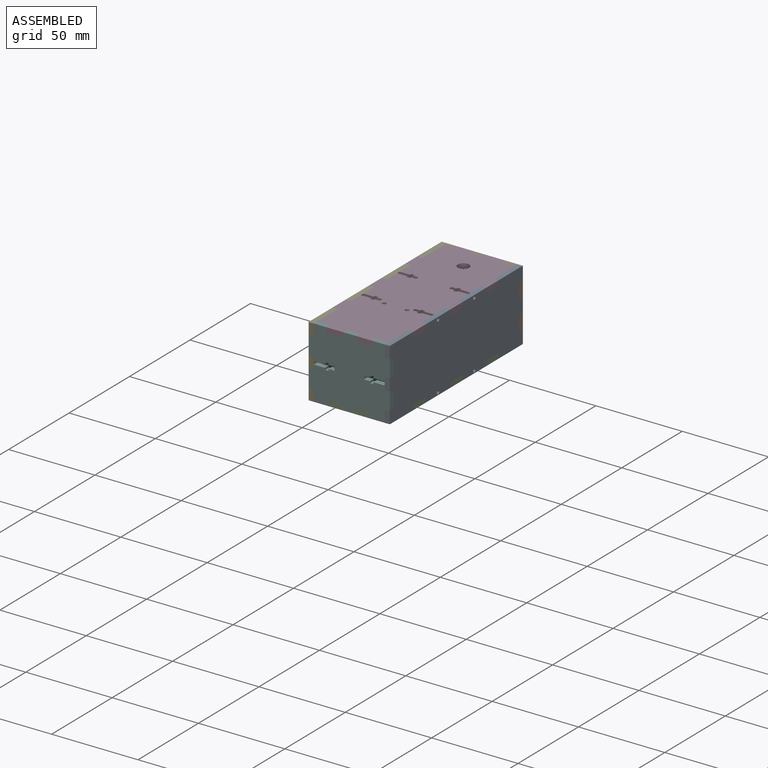
[diagram: assembled view]
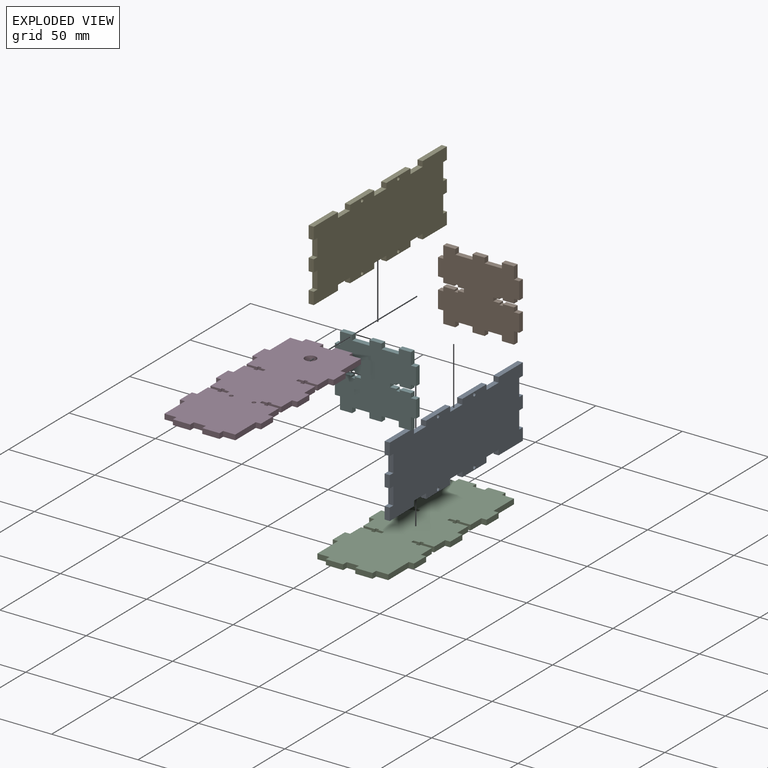
[diagram: exploded view]
GUIDED TOUR — MATED ASSEMBLY (Onshape document 57d8817723af1910d3bd62b0, AutoMate assembly 57d8817723af1910d3bd62b0_c3885aeb48be8cde890f6c77_c3d8289afe01d3ef316c972d_default)

This assembly has 6 components, labeled P0..P5 below (a component is one placed occurrence of a part; the same part can appear more than once), held together by 5 mates. A mate is a constraint between two components; its type names the relative motion it leaves free:
  FASTENED — locks the two components together rigidly (no relative motion).
Axis/direction vectors are unit vectors and 'through' points are millimeter coordinates, both in the assembly's world frame.

MATES
  1. FASTENED "Fastened 1": P1 <-> P4, direction (0.000, 0.000, 1.000) through (-58.52, 35.32, 27.29) mm
  2. FASTENED "Fastened 5": P3 <-> P0, direction (0.000, 1.000, 0.000) through (-14.52, 16.82, 32.79) mm
  3. FASTENED "Fastened 4": P2 <-> P1, direction (1.000, 0.000, 0.000) through (-23.02, 35.32, -5.21) mm
  4. FASTENED "Fastened 3": P5 <-> P4, direction (0.000, 0.000, 1.000) through (-58.52, -71.68, 27.29) mm
  5. FASTENED "Fastened 2": P1 <-> P0, direction (0.000, 0.000, 1.000) through (-14.52, 35.32, 27.29) mm

ASSEMBLY ORDER
  1. P1 — the base component [order verified]
  2. P4 [order verified]
  3. P5 [order verified]
  4. P0 [order verified]
  5. P3 [order verified]
  6. P2 [order verified]
Order-tag legend:
  [order verified] — this step's position reverses a verified removal order: the component was checked to insert without passing through the ones already placed.

Of the 6 components, 6 carry the full construction recipe — the FeatureScript program that regenerates the part's solid from scratch; the rest are supplied as boundary geometry only.
Each toured component is shown spotlighted twice — in the assembled view, then in the exploded view, where a leader line traces a displaced component back to its assembled socket (saturated green if recipe-attached, orange if geometry-only; every other component desaturated gray) — followed by its recipe or geometry summary and the mates that hold it.
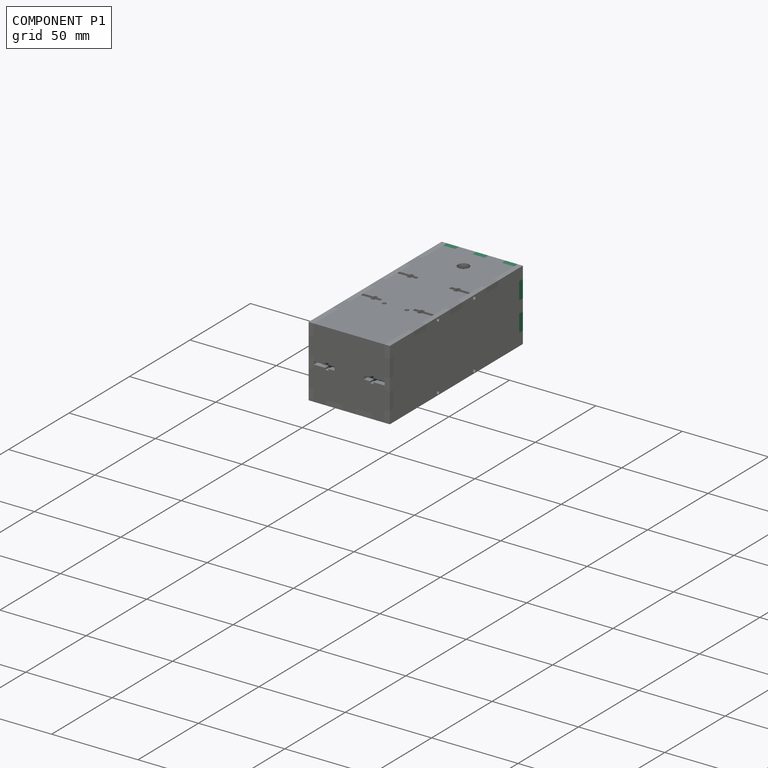
[diagram: component P1 — assembled]
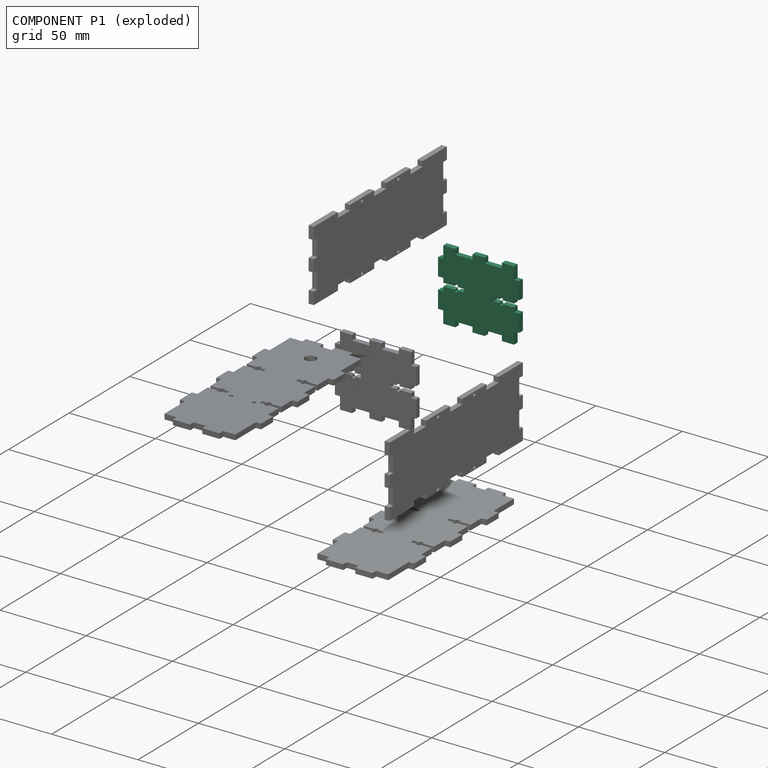
[diagram: component P1 — exploded]
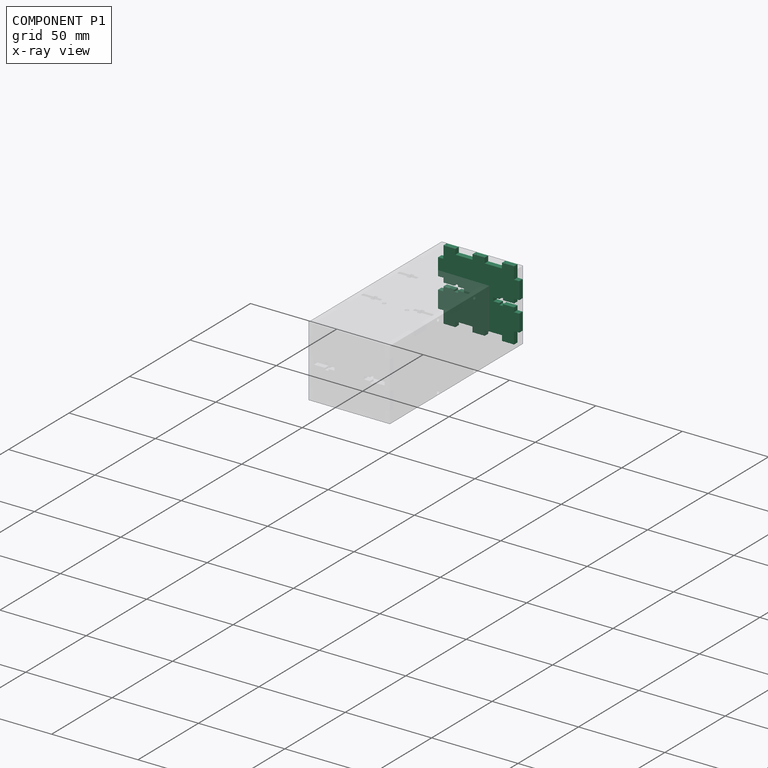
[diagram: component P1 — x-ray view]
COMPONENT P1 — recipe-attached (CADFS 00243607, mesh-verified: the recipe's output STEP matches this component's geometry to below the mesh-comparison resolution (tessellation chordal tolerance ~0.0937 mm)).
Held by: FASTENED mate "Fastened 1" to P4; FASTENED mate "Fastened 4" to P2; FASTENED mate "Fastened 2" to P0.
Construction recipe (FeatureScript — the CAD program that rebuilds this solid; sketch coordinates are in the units given by the * unit suffixes, e.g. mm):

FeatureScript 1511;
import(path : "onshape/std/geometry.fs", version : "1511.0");
import(path : "onshape/std/common.fs", version : "1511.0");
const mm = millimeter;
const VERTEX = EntityType.VERTEX;
const EDGE = EntityType.EDGE;
const FACE = EntityType.FACE;
const BODY = EntityType.BODY;
function v(x, y){return vector(x, y);}
function OD(order){return orderDisambiguation(order);}
function OSD(set){return originalSetDisambiguation(set);}
function TD(topology){return topologyDisambiguation(topology);}
function TDD(query){return trueDependencyDisambiguation(query);}
function sQuery(a, b, c) {return sketchEntityQuery(a, b, c);}

annotation { "Feature Type Name" : "Feature", "Feature Type Description" : "" }
export const myFeature = defineFeature(function(context is Context, id is Id, definition is map)
    precondition{}
    {
        {
            var Q0;
            Q0=qCreatedBy(makeId("Front.planeOp"),FACE);
            var sketch = newSketch(context, id + "F0", { "sketchPlane" : qUnion([Q0])});
            skLineSegment(sketch, "E0", {"start": v(0, 0) * mm, "end": v(0, 7) * mm});
            skLineSegment(sketch, "E1", {"start": v(0, 7) * mm, "end": v(-3, 7) * mm});
            skLineSegment(sketch, "E2", {"start": v(-3, 7) * mm, "end": v(-3, 17) * mm});
            skLineSegment(sketch, "E3", {"start": v(-3, 17) * mm, "end": v(0, 17) * mm});
            skLineSegment(sketch, "E4", {"start": v(0, 17) * mm, "end": v(0, 24) * mm});
            skLineSegment(sketch, "E5", {"start": v(0, 24) * mm, "end": v(-3, 24) * mm});
            skLineSegment(sketch, "E6", {"start": v(-3, 24) * mm, "end": v(-3, 34) * mm});
            skLineSegment(sketch, "E7", {"start": v(-3, 34) * mm, "end": v(0, 34) * mm});
            skLineSegment(sketch, "E8", {"start": v(0, 34) * mm, "end": v(0, 41) * mm});
            skLineSegment(sketch, "E9", {"start": v(0, 41) * mm, "end": v(-7, 41) * mm});
            skLineSegment(sketch, "E10", {"start": v(-7, 41) * mm, "end": v(-7, 44) * mm});
            skLineSegment(sketch, "E11", {"start": v(-7, 44) * mm, "end": v(-17, 44) * mm});
            skLineSegment(sketch, "E12", {"start": v(-17, 44) * mm, "end": v(-17, 41) * mm});
            skLineSegment(sketch, "E13", {"start": v(-17, 41) * mm, "end": v(-19.5, 41) * mm});
            skLineSegment(sketch, "E14", {"start": v(-19.5, 41) * mm, "end": v(-19.5, 34.5) * mm});
            skLineSegment(sketch, "E15", {"start": v(-19.5, 34.5) * mm, "end": v(-18.5, 34.5) * mm});
            skLineSegment(sketch, "E16", {"start": v(-18.5, 34.5) * mm, "end": v(-18.5, 32.5) * mm});
            skLineSegment(sketch, "E17", {"start": v(-18.5, 32.5) * mm, "end": v(-19.5, 32.5) * mm});
            skLineSegment(sketch, "E18", {"start": v(-19.5, 32.5) * mm, "end": v(-19.5, 29) * mm});
            skLineSegment(sketch, "E19", {"start": v(-19.5, 29) * mm, "end": v(-20.5, 29) * mm});
            skLineSegment(sketch, "E20.MirrorCS", {"start": v(-17, 0) * mm, "end": v(-19.5, 0) * mm});
            skLineSegment(sketch, "E21.MirrorCS", {"start": v(-17, -3) * mm, "end": v(-17, 0) * mm});
            skLineSegment(sketch, "E22.MirrorCS", {"start": v(-7, -3) * mm, "end": v(-17, -3) * mm});
            skLineSegment(sketch, "E23.MirrorCS", {"start": v(-7, 0) * mm, "end": v(-7, -3) * mm});
            skLineSegment(sketch, "E24.MirrorCS", {"start": v(0, 0) * mm, "end": v(-7, 0) * mm});
            skLineSegment(sketch, "E25.MirrorCS", {"start": v(-18.5, 6.5) * mm, "end": v(-18.5, 8.5) * mm});
            skLineSegment(sketch, "E26.MirrorCS", {"start": v(-19.5, 8.5) * mm, "end": v(-19.5, 12) * mm});
            skLineSegment(sketch, "E27.MirrorCS", {"start": v(-19.5, 6.5) * mm, "end": v(-18.5, 6.5) * mm});
            skLineSegment(sketch, "E28.MirrorCS", {"start": v(-18.5, 8.5) * mm, "end": v(-19.5, 8.5) * mm});
            skLineSegment(sketch, "E29.MirrorCS", {"start": v(-19.5, 0) * mm, "end": v(-19.5, 6.5) * mm});
            skLineSegment(sketch, "E30", {"start": v(-19.5, 12) * mm, "end": v(-20.5, 12) * mm});
            skLineSegment(sketch, "E31.MirrorCS", {"start": v(-24, 0) * mm, "end": v(-21.5, 0) * mm});
            skLineSegment(sketch, "E32.MirrorCS", {"start": v(-22.5, 6.5) * mm, "end": v(-22.5, 8.5) * mm});
            skLineSegment(sketch, "E33.MirrorCS", {"start": v(-22.5, 8.5) * mm, "end": v(-21.5, 8.5) * mm});
            skLineSegment(sketch, "E34.MirrorCS", {"start": v(-21.5, 34.5) * mm, "end": v(-22.5, 34.5) * mm});
            skLineSegment(sketch, "E35.MirrorCS", {"start": v(-22.5, 32.5) * mm, "end": v(-21.5, 32.5) * mm});
            skLineSegment(sketch, "E36.MirrorCS", {"start": v(-24, 41) * mm, "end": v(-21.5, 41) * mm});
            skLineSegment(sketch, "E37.MirrorCS", {"start": v(-21.5, 6.5) * mm, "end": v(-22.5, 6.5) * mm});
            skLineSegment(sketch, "E38.MirrorCS", {"start": v(-22.5, 34.5) * mm, "end": v(-22.5, 32.5) * mm});
            skLineSegment(sketch, "E39.MirrorCS", {"start": v(-38, 17) * mm, "end": v(-41, 17) * mm});
            skLineSegment(sketch, "E40.MirrorCS", {"start": v(-41, 0) * mm, "end": v(-34, 0) * mm});
            skLineSegment(sketch, "E41.MirrorCS", {"start": v(-24, -3) * mm, "end": v(-24, 0) * mm});
            skLineSegment(sketch, "E42.MirrorCS", {"start": v(-21.5, 8.5) * mm, "end": v(-21.5, 12) * mm});
            skLineSegment(sketch, "E43.MirrorCS", {"start": v(-21.5, 32.5) * mm, "end": v(-21.5, 29) * mm});
            skLineSegment(sketch, "E44.MirrorCS", {"start": v(-21.5, 0) * mm, "end": v(-21.5, 6.5) * mm});
            skLineSegment(sketch, "E45.MirrorCS", {"start": v(-34, 0) * mm, "end": v(-34, -3) * mm});
            skLineSegment(sketch, "E46.MirrorCS", {"start": v(-34, 41) * mm, "end": v(-34, 44) * mm});
            skLineSegment(sketch, "E47.MirrorCS", {"start": v(-24, 44) * mm, "end": v(-24, 41) * mm});
            skLineSegment(sketch, "E48.MirrorCS", {"start": v(-41, 24) * mm, "end": v(-38, 24) * mm});
            skLineSegment(sketch, "E49.MirrorCS", {"start": v(-41, 17) * mm, "end": v(-41, 24) * mm});
            skLineSegment(sketch, "E50.MirrorCS", {"start": v(-38, 34) * mm, "end": v(-41, 34) * mm});
            skLineSegment(sketch, "E51.MirrorCS", {"start": v(-41, 41) * mm, "end": v(-34, 41) * mm});
            skLineSegment(sketch, "E52.MirrorCS", {"start": v(-41, 7) * mm, "end": v(-38, 7) * mm});
            skLineSegment(sketch, "E53.MirrorCS", {"start": v(-21.5, 41) * mm, "end": v(-21.5, 34.5) * mm});
            skLineSegment(sketch, "E54.MirrorCS", {"start": v(-34, -3) * mm, "end": v(-24, -3) * mm});
            skLineSegment(sketch, "E55.MirrorCS", {"start": v(-41, 34) * mm, "end": v(-41, 41) * mm});
            skLineSegment(sketch, "E56.MirrorCS", {"start": v(-38, 24) * mm, "end": v(-38, 34) * mm});
            skLineSegment(sketch, "E57.MirrorCS", {"start": v(-41, 0) * mm, "end": v(-41, 7) * mm});
            skLineSegment(sketch, "E58.MirrorCS", {"start": v(-34, 44) * mm, "end": v(-24, 44) * mm});
            skLineSegment(sketch, "E59.MirrorCS", {"start": v(-38, 7) * mm, "end": v(-38, 17) * mm});
            skLineSegment(sketch, "E60.MirrorCS", {"start": v(-21.5, 29) * mm, "end": v(-20.5, 29) * mm});
            skLineSegment(sketch, "E61.MirrorCS", {"start": v(-21.5, 12) * mm, "end": v(-20.5, 12) * mm});
            skSolve(sketch);
        }
        {
            var Q0;
            Q0=makeQuery(id+"F0.imprint","IMPRINT",FACE,{"disambiguationData":[TD([[makeQuery(id+"F0.imprint","IMPRINT",EDGE,{"derivedFrom":sQuery(id+"F0.wireOp",EDGE,"E0")}),1.0]])]});
            extrude(context, id + "F1", {"entities" : qUnion([Q0]), "depth" : 3 * mm});
        }
    });
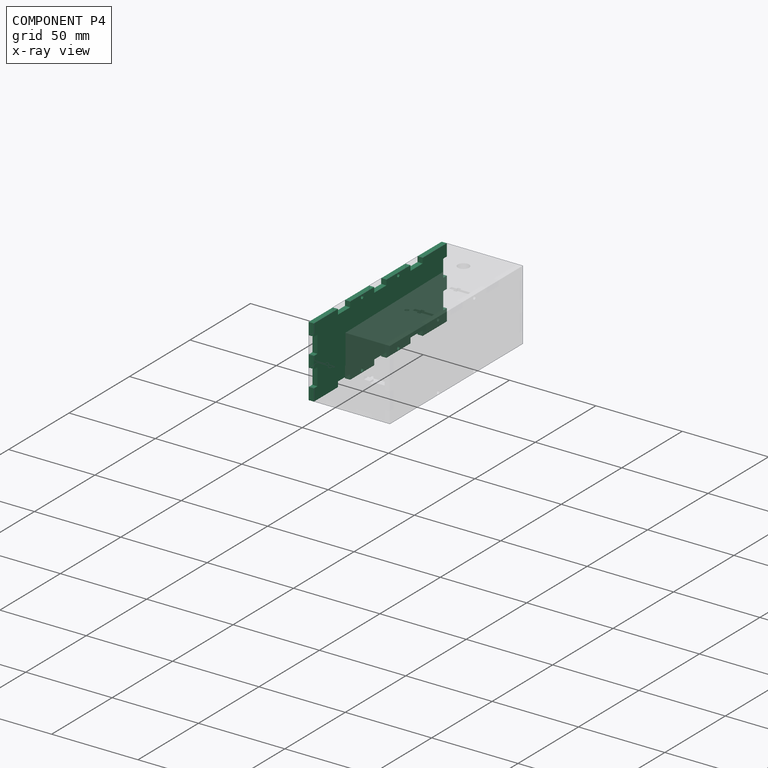
[diagram: component P4 — x-ray view]
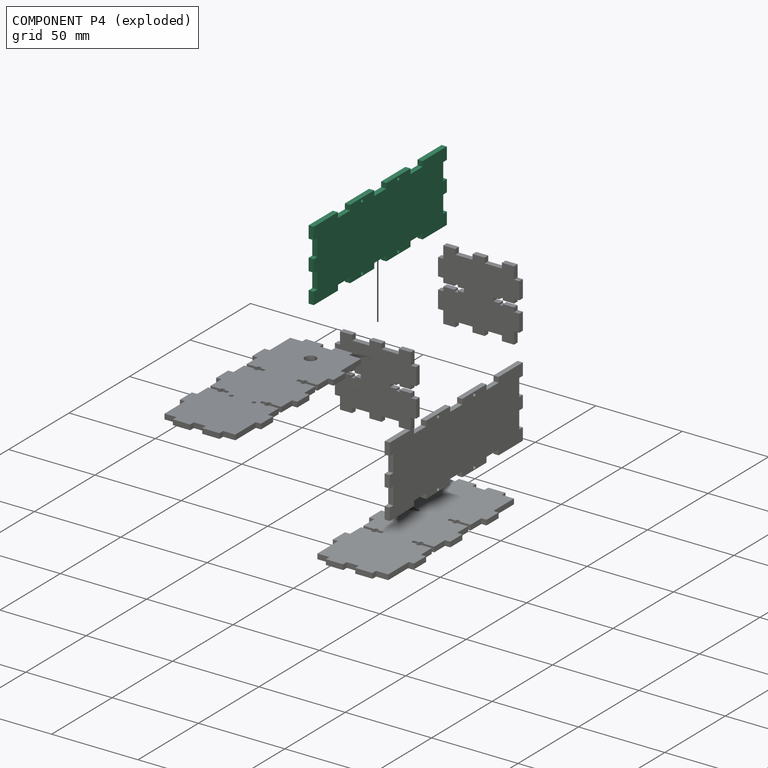
[diagram: component P4 — exploded]
COMPONENT P4 — same part as P0 (CADFS 00243629); its construction recipe is shown at P0.
Held by: FASTENED mate "Fastened 1" to P1; FASTENED mate "Fastened 3" to P5.
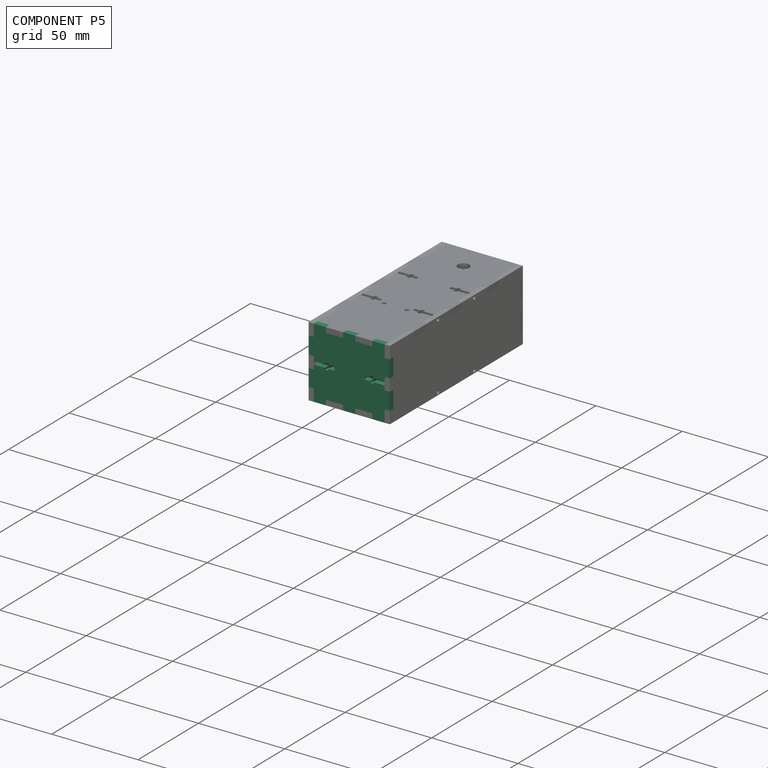
[diagram: component P5 — assembled]
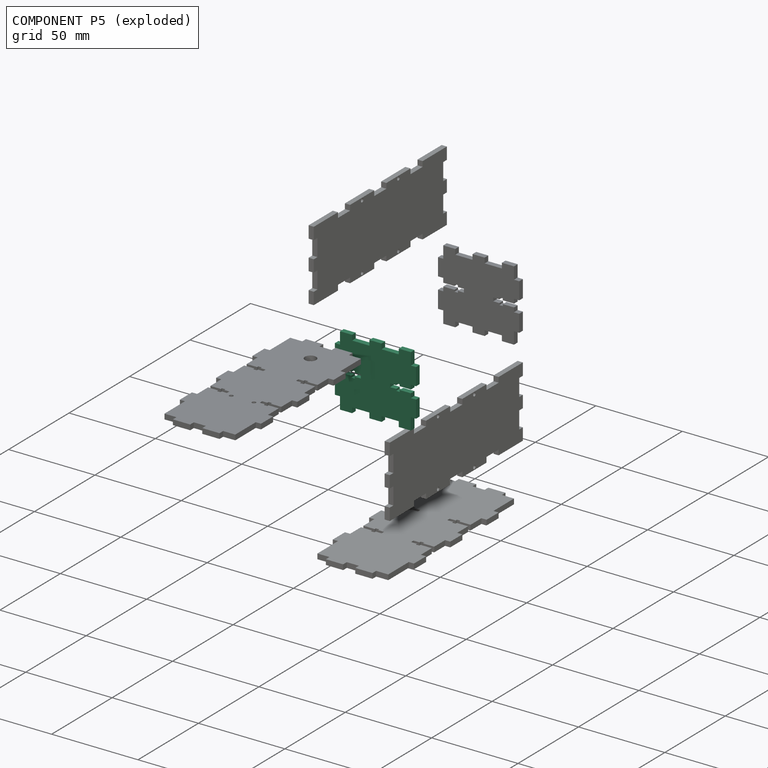
[diagram: component P5 — exploded]
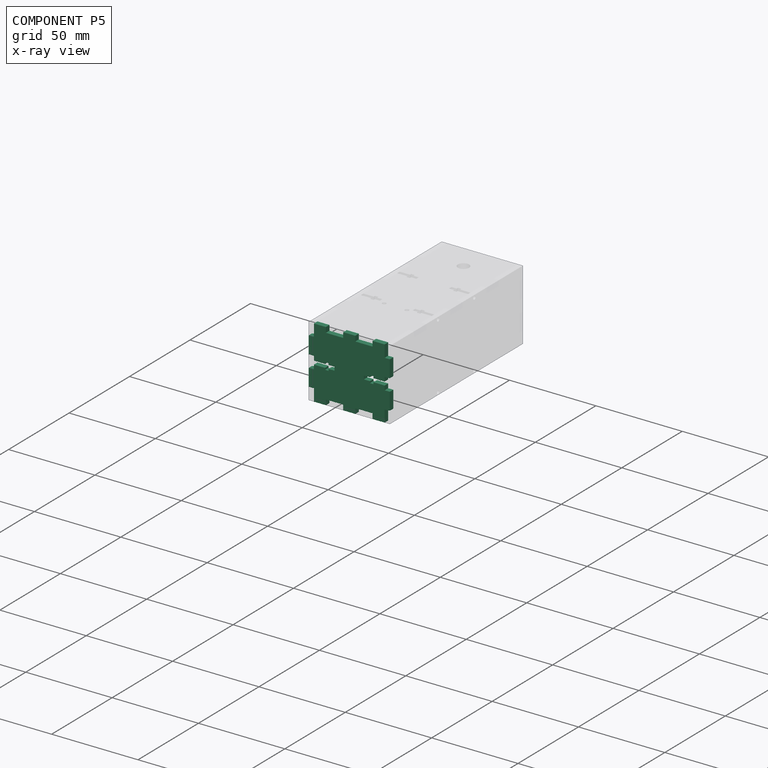
[diagram: component P5 — x-ray view]
COMPONENT P5 — same part as P1 (CADFS 00243607); its construction recipe is shown at P1.
Held by: FASTENED mate "Fastened 3" to P4.
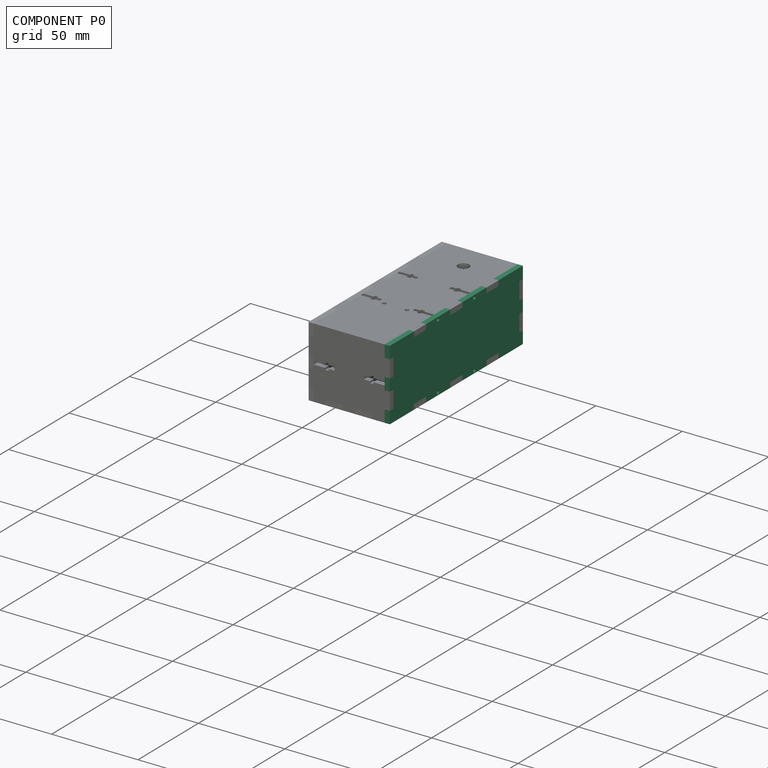
[diagram: component P0 — assembled]
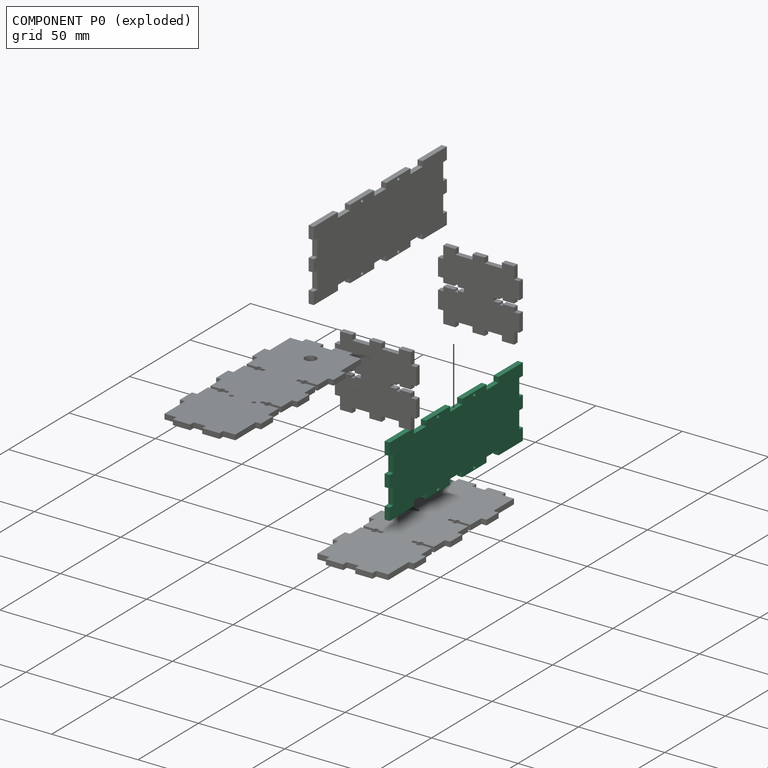
[diagram: component P0 — exploded]
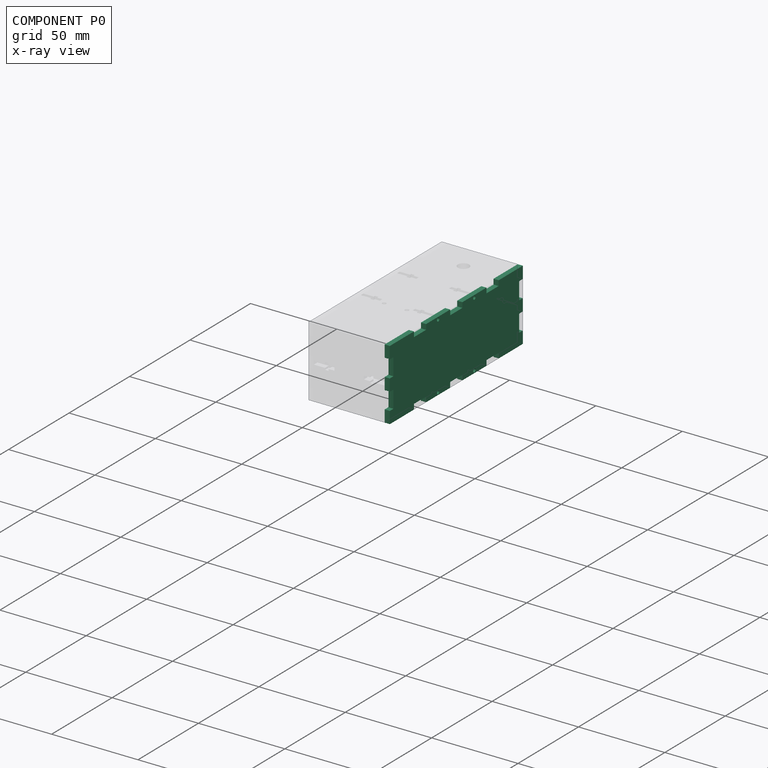
[diagram: component P0 — x-ray view]
COMPONENT P0 — recipe-attached (CADFS 00243629, mesh-verified: the recipe's output STEP matches this component's geometry to below the mesh-comparison resolution (tessellation chordal tolerance ~0.176 mm)).
Held by: FASTENED mate "Fastened 5" to P3; FASTENED mate "Fastened 2" to P1.
Construction recipe (FeatureScript — the CAD program that rebuilds this solid; sketch coordinates are in the units given by the * unit suffixes, e.g. mm):

FeatureScript 1511;
import(path : "onshape/std/geometry.fs", version : "1511.0");
import(path : "onshape/std/common.fs", version : "1511.0");
const mm = millimeter;
const VERTEX = EntityType.VERTEX;
const EDGE = EntityType.EDGE;
const FACE = EntityType.FACE;
const BODY = EntityType.BODY;
function v(x, y){return vector(x, y);}
function OD(order){return orderDisambiguation(order);}
function OSD(set){return originalSetDisambiguation(set);}
function TD(topology){return topologyDisambiguation(topology);}
function TDD(query){return trueDependencyDisambiguation(query);}
function sQuery(a, b, c) {return sketchEntityQuery(a, b, c);}

annotation { "Feature Type Name" : "Feature", "Feature Type Description" : "" }
export const myFeature = defineFeature(function(context is Context, id is Id, definition is map)
    precondition{}
    {
        {
            var Q0;
            Q0=qCreatedBy(makeId("Right.planeOp"),FACE);
            var sketch = newSketch(context, id + "F0", { "sketchPlane" : qUnion([Q0])});
            skLineSegment(sketch, "E0", {"start": v(0, 0) * mm, "end": v(0, 7) * mm});
            skLineSegment(sketch, "E1", {"start": v(0, 7) * mm, "end": v(-3, 7) * mm});
            skLineSegment(sketch, "E2", {"start": v(-3, 7) * mm, "end": v(-3, 17) * mm});
            skLineSegment(sketch, "E3", {"start": v(-3, 17) * mm, "end": v(0, 17) * mm});
            skLineSegment(sketch, "E4", {"start": v(0, 17) * mm, "end": v(0, 24) * mm});
            skLineSegment(sketch, "E5", {"start": v(0, 24) * mm, "end": v(-3, 24) * mm});
            skLineSegment(sketch, "E6", {"start": v(-3, 24) * mm, "end": v(-3, 34) * mm});
            skLineSegment(sketch, "E7", {"start": v(-3, 34) * mm, "end": v(0, 34) * mm});
            skLineSegment(sketch, "E8", {"start": v(0, 34) * mm, "end": v(0, 41) * mm});
            skLineSegment(sketch, "E9", {"start": v(0, 41) * mm, "end": v(-20, 41) * mm});
            skLineSegment(sketch, "E10", {"start": v(-20, 41) * mm, "end": v(-20, 38) * mm});
            skLineSegment(sketch, "E11", {"start": v(-20, 38) * mm, "end": v(-30, 38) * mm});
            skLineSegment(sketch, "E12", {"start": v(-30, 38) * mm, "end": v(-30, 41) * mm});
            skLineSegment(sketch, "E13", {"start": v(-30, 41) * mm, "end": v(-50, 41) * mm});
            skLineSegment(sketch, "E14", {"start": v(-50, 41) * mm, "end": v(-50, 38) * mm});
            skLineSegment(sketch, "E15", {"start": v(-50, 38) * mm, "end": v(-55, 38) * mm});
            skLineSegment(sketch, "E16", {"start": v(-55, 3) * mm, "end": v(-50, 3) * mm});
            skLineSegment(sketch, "E17", {"start": v(-50, 3) * mm, "end": v(-50, 0) * mm});
            skLineSegment(sketch, "E18", {"start": v(-50, 0) * mm, "end": v(-30, 0) * mm});
            skLineSegment(sketch, "E19", {"start": v(-30, 0) * mm, "end": v(-30, 3) * mm});
            skLineSegment(sketch, "E20", {"start": v(-30, 3) * mm, "end": v(-20, 3) * mm});
            skLineSegment(sketch, "E21", {"start": v(-20, 3) * mm, "end": v(-20, 0) * mm});
            skLineSegment(sketch, "E22", {"start": v(-20, 0) * mm, "end": v(0, 0) * mm});
            skPoint(sketch, "E23.endSnap0", {"position": v(-40, 41) * mm});
            skCircle(sketch, "E24", {"center": v(-40, 39.5) * mm, "radius": 1 * mm});
            skCircle(sketch, "E25.MirrorC", {"center": v(-40, 1.5) * mm, "radius": 1 * mm});
            skCircle(sketch, "E26.MirrorC", {"center": v(-70, 39.5) * mm, "radius": 1 * mm});
            skLineSegment(sketch, "E27.MirrorCS", {"start": v(-55, 3) * mm, "end": v(-60, 3) * mm});
            skLineSegment(sketch, "E28.MirrorCS", {"start": v(-80, 0) * mm, "end": v(-80, 3) * mm});
            skLineSegment(sketch, "E29.MirrorCS", {"start": v(-80, 38) * mm, "end": v(-80, 41) * mm});
            skLineSegment(sketch, "E30.MirrorCS", {"start": v(-90, 38) * mm, "end": v(-80, 38) * mm});
            skLineSegment(sketch, "E31.MirrorCS", {"start": v(-110, 7) * mm, "end": v(-107, 7) * mm});
            skLineSegment(sketch, "E32.MirrorCS", {"start": v(-107, 7) * mm, "end": v(-107, 17) * mm});
            skLineSegment(sketch, "E33.MirrorCS", {"start": v(-110, 0) * mm, "end": v(-110, 7) * mm});
            skLineSegment(sketch, "E34.MirrorCS", {"start": v(-80, 3) * mm, "end": v(-90, 3) * mm});
            skPoint(sketch, "E35.MirrorP", {"position": v(-70, 41) * mm});
            skLineSegment(sketch, "E36.MirrorCS", {"start": v(-60, 38) * mm, "end": v(-55, 38) * mm});
            skLineSegment(sketch, "E37.MirrorCS", {"start": v(-90, 0) * mm, "end": v(-110, 0) * mm});
            skLineSegment(sketch, "E38.MirrorCS", {"start": v(-90, 3) * mm, "end": v(-90, 0) * mm});
            skLineSegment(sketch, "E39.MirrorCS", {"start": v(-60, 0) * mm, "end": v(-80, 0) * mm});
            skCircle(sketch, "E40.MirrorC", {"center": v(-70, 1.5) * mm, "radius": 1 * mm});
            skLineSegment(sketch, "E41.MirrorCS", {"start": v(-110, 41) * mm, "end": v(-90, 41) * mm});
            skLineSegment(sketch, "E42.MirrorCS", {"start": v(-110, 24) * mm, "end": v(-107, 24) * mm});
            skLineSegment(sketch, "E43.MirrorCS", {"start": v(-90, 41) * mm, "end": v(-90, 38) * mm});
            skLineSegment(sketch, "E44.MirrorCS", {"start": v(-110, 34) * mm, "end": v(-110, 41) * mm});
            skLineSegment(sketch, "E45.MirrorCS", {"start": v(-107, 17) * mm, "end": v(-110, 17) * mm});
            skLineSegment(sketch, "E46.MirrorCS", {"start": v(-80, 41) * mm, "end": v(-60, 41) * mm});
            skLineSegment(sketch, "E47.MirrorCS", {"start": v(-60, 3) * mm, "end": v(-60, 0) * mm});
            skLineSegment(sketch, "E48.MirrorCS", {"start": v(-60, 41) * mm, "end": v(-60, 38) * mm});
            skLineSegment(sketch, "E49.MirrorCS", {"start": v(-107, 34) * mm, "end": v(-110, 34) * mm});
            skLineSegment(sketch, "E50.MirrorCS", {"start": v(-107, 24) * mm, "end": v(-107, 34) * mm});
            skLineSegment(sketch, "E51.MirrorCS", {"start": v(-110, 17) * mm, "end": v(-110, 24) * mm});
            skSolve(sketch);
        }
        {
            var Q0;
            Q0=makeQuery(id+"F0.imprint","IMPRINT",FACE,{"disambiguationData":[TD([[makeQuery(id+"F0.imprint","IMPRINT",EDGE,{"derivedFrom":sQuery(id+"F0.wireOp",EDGE,"E0")}),1.0]])]});
            extrude(context, id + "F1", {"entities" : qUnion([Q0]), "depth" : 3 * mm});
        }
    });
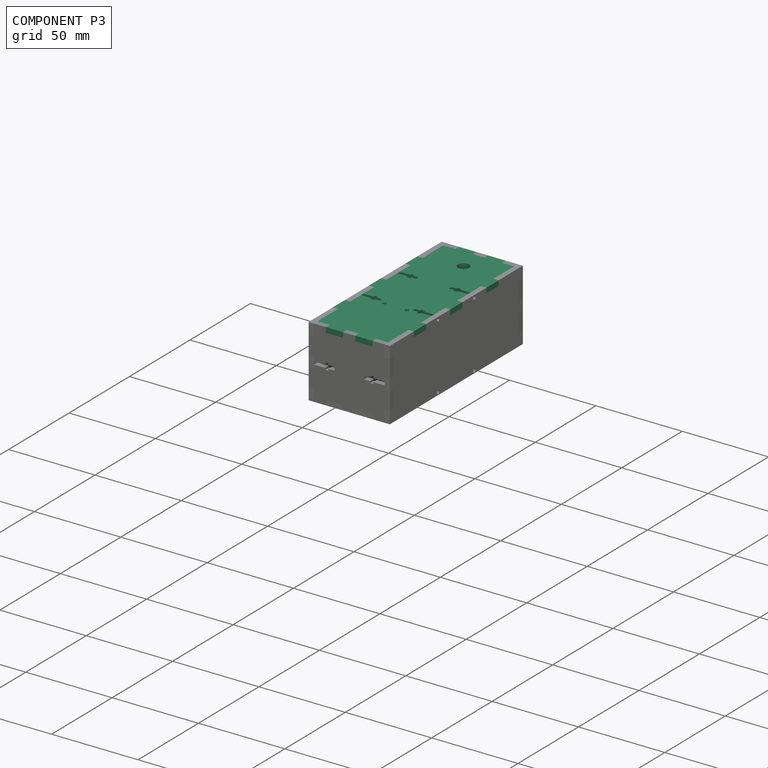
[diagram: component P3 — assembled]
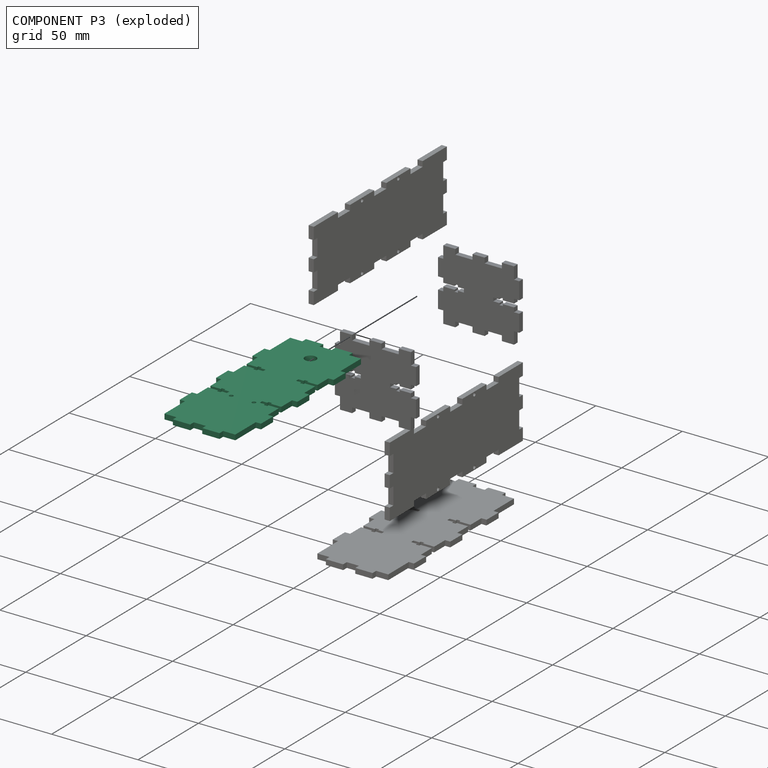
[diagram: component P3 — exploded]
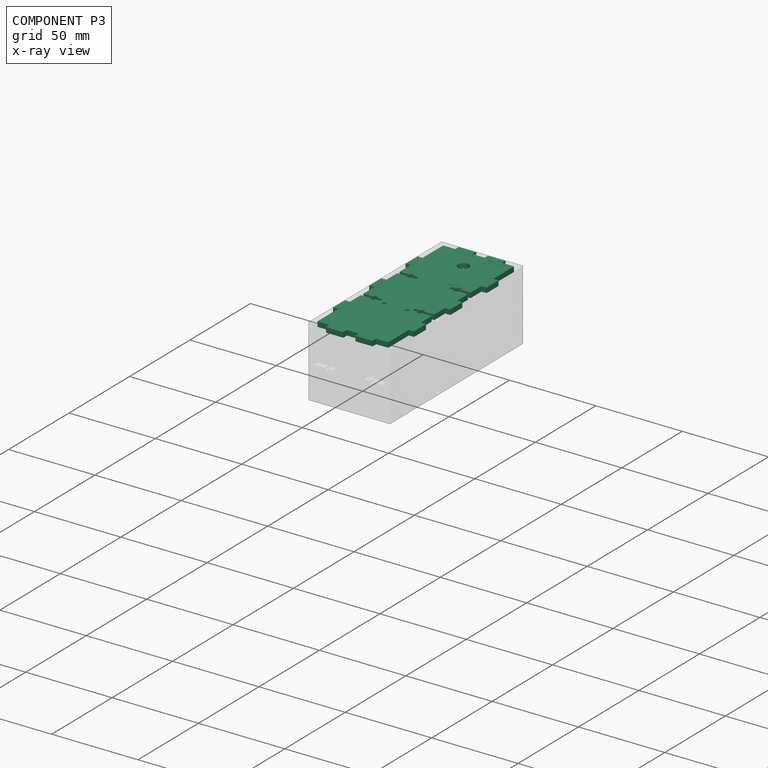
[diagram: component P3 — x-ray view]
COMPONENT P3 — recipe-attached (CADFS 00243605, mesh-verified: the recipe's output STEP matches this component's geometry to below the mesh-comparison resolution (tessellation chordal tolerance ~0.179 mm)).
Held by: FASTENED mate "Fastened 5" to P0.
Construction recipe (FeatureScript — the CAD program that rebuilds this solid; sketch coordinates are in the units given by the * unit suffixes, e.g. mm):

FeatureScript 1511;
import(path : "onshape/std/geometry.fs", version : "1511.0");
import(path : "onshape/std/common.fs", version : "1511.0");
const mm = millimeter;
const VERTEX = EntityType.VERTEX;
const EDGE = EntityType.EDGE;
const FACE = EntityType.FACE;
const BODY = EntityType.BODY;
function v(x, y){return vector(x, y);}
function OD(order){return orderDisambiguation(order);}
function OSD(set){return originalSetDisambiguation(set);}
function TD(topology){return topologyDisambiguation(topology);}
function TDD(query){return trueDependencyDisambiguation(query);}
function sQuery(a, b, c) {return sketchEntityQuery(a, b, c);}

annotation { "Feature Type Name" : "Feature", "Feature Type Description" : "" }
export const myFeature = defineFeature(function(context is Context, id is Id, definition is map)
    precondition{}
    {
        {
            var Q0;
            Q0=qCreatedBy(makeId("Top.planeOp"),FACE);
            var sketch = newSketch(context, id + "F0", { "sketchPlane" : qUnion([Q0])});
            skLineSegment(sketch, "E0", {"start": v(0, 0) * mm, "end": v(0, 7) * mm});
            skLineSegment(sketch, "E1", {"start": v(0, 7) * mm, "end": v(3, 7) * mm});
            skLineSegment(sketch, "E2", {"start": v(3, 7) * mm, "end": v(3, 17) * mm});
            skLineSegment(sketch, "E3", {"start": v(3, 17) * mm, "end": v(0, 17) * mm});
            skLineSegment(sketch, "E4", {"start": v(0, 17) * mm, "end": v(0, 24) * mm});
            skLineSegment(sketch, "E5", {"start": v(0, 24) * mm, "end": v(3, 24) * mm});
            skLineSegment(sketch, "E6", {"start": v(3, 24) * mm, "end": v(3, 34) * mm});
            skLineSegment(sketch, "E7", {"start": v(3, 34) * mm, "end": v(0, 34) * mm});
            skLineSegment(sketch, "E8", {"start": v(0, 34) * mm, "end": v(0, 41) * mm});
            skLineSegment(sketch, "E9", {"start": v(0, 41) * mm, "end": v(-17, 41) * mm});
            skLineSegment(sketch, "E10", {"start": v(-17, 41) * mm, "end": v(-17, 44) * mm});
            skLineSegment(sketch, "E11", {"start": v(-17, 44) * mm, "end": v(-27, 44) * mm});
            skLineSegment(sketch, "E12", {"start": v(-27, 44) * mm, "end": v(-27, 41) * mm});
            skLineSegment(sketch, "E13", {"start": v(-47, 41) * mm, "end": v(-47, 44) * mm});
            skLineSegment(sketch, "E14", {"start": v(-47, -3) * mm, "end": v(-47, 0) * mm});
            skLineSegment(sketch, "E15", {"start": v(-47, 0) * mm, "end": v(-38, 0) * mm});
            skLineSegment(sketch, "E16", {"start": v(-27, 0) * mm, "end": v(-27, -3) * mm});
            skLineSegment(sketch, "E17", {"start": v(-27, -3) * mm, "end": v(-17, -3) * mm});
            skLineSegment(sketch, "E18", {"start": v(-17, 0) * mm, "end": v(-17, -3) * mm});
            skLineSegment(sketch, "E19", {"start": v(-17, 0) * mm, "end": v(0, 0) * mm});
            skLineSegment(sketch, "E20", {"start": v(-47, 41) * mm, "end": v(-38, 41) * mm});
            skLineSegment(sketch, "E21", {"start": v(-27, 41) * mm, "end": v(-36, 41) * mm});
            skLineSegment(sketch, "E22", {"start": v(-38, 41) * mm, "end": v(-38, 35) * mm});
            skLineSegment(sketch, "E23", {"start": v(-38, 35) * mm, "end": v(-39, 35) * mm});
            skLineSegment(sketch, "E24", {"start": v(-39, 35) * mm, "end": v(-39, 33) * mm});
            skLineSegment(sketch, "E25", {"start": v(-39, 33) * mm, "end": v(-38, 33) * mm});
            skLineSegment(sketch, "E26", {"start": v(-38, 33) * mm, "end": v(-38, 30) * mm});
            skLineSegment(sketch, "E27", {"start": v(-38, 30) * mm, "end": v(-36, 30) * mm});
            skLineSegment(sketch, "E28", {"start": v(-36, 30) * mm, "end": v(-36, 33) * mm});
            skLineSegment(sketch, "E29", {"start": v(-36, 33) * mm, "end": v(-35, 33) * mm});
            skLineSegment(sketch, "E30", {"start": v(-35, 33) * mm, "end": v(-35, 35) * mm});
            skLineSegment(sketch, "E31", {"start": v(-35, 35) * mm, "end": v(-36, 35) * mm});
            skLineSegment(sketch, "E32", {"start": v(-36, 35) * mm, "end": v(-36, 41) * mm});
            skLineSegment(sketch, "E33.MirrorCS", {"start": v(-39, 8) * mm, "end": v(-38, 8) * mm});
            skLineSegment(sketch, "E34.MirrorCS", {"start": v(-36, 8) * mm, "end": v(-35, 8) * mm});
            skLineSegment(sketch, "E35.MirrorCS", {"start": v(-35, 6) * mm, "end": v(-36, 6) * mm});
            skLineSegment(sketch, "E36.MirrorCS", {"start": v(-38, 6) * mm, "end": v(-39, 6) * mm});
            skLineSegment(sketch, "E37.MirrorCS", {"start": v(-38, 11) * mm, "end": v(-36, 11) * mm});
            skLineSegment(sketch, "E38.MirrorCS", {"start": v(-38, 8) * mm, "end": v(-38, 11) * mm});
            skLineSegment(sketch, "E39.MirrorCS", {"start": v(-36, 11) * mm, "end": v(-36, 8) * mm});
            skLineSegment(sketch, "E40.MirrorCS", {"start": v(-35, 8) * mm, "end": v(-35, 6) * mm});
            skLineSegment(sketch, "E41.MirrorCS", {"start": v(-39, 6) * mm, "end": v(-39, 8) * mm});
            skLineSegment(sketch, "E42.MirrorCS", {"start": v(-38, 0) * mm, "end": v(-38, 6) * mm});
            skLineSegment(sketch, "E43.MirrorCS", {"start": v(-36, 6) * mm, "end": v(-36, 0) * mm});
            skLineSegment(sketch, "E44.trimOffspring", {"start": v(-36, 0) * mm, "end": v(-27, 0) * mm});
            skLineSegment(sketch, "E45.MirrorCS", {"start": v(-69, 33) * mm, "end": v(-69, 35) * mm});
            skLineSegment(sketch, "E46.MirrorCS", {"start": v(-69, 35) * mm, "end": v(-68, 35) * mm});
            skLineSegment(sketch, "E47.MirrorCS", {"start": v(-65, 35) * mm, "end": v(-65, 33) * mm});
            skLineSegment(sketch, "E48.MirrorCS", {"start": v(-68, 8) * mm, "end": v(-69, 8) * mm});
            skLineSegment(sketch, "E49.MirrorCS", {"start": v(-65, 33) * mm, "end": v(-66, 33) * mm});
            skLineSegment(sketch, "E50.MirrorCS", {"start": v(-68, 33) * mm, "end": v(-69, 33) * mm});
            skLineSegment(sketch, "E51.MirrorCS", {"start": v(-65, 8) * mm, "end": v(-66, 8) * mm});
            skLineSegment(sketch, "E52.MirrorCS", {"start": v(-65, 6) * mm, "end": v(-65, 8) * mm});
            skLineSegment(sketch, "E53.MirrorCS", {"start": v(-69, 8) * mm, "end": v(-69, 6) * mm});
            skLineSegment(sketch, "E54.MirrorCS", {"start": v(-69, 6) * mm, "end": v(-68, 6) * mm});
            skLineSegment(sketch, "E55.MirrorCS", {"start": v(-87, 0) * mm, "end": v(-87, -3) * mm});
            skLineSegment(sketch, "E56.MirrorCS", {"start": v(-66, 30) * mm, "end": v(-68, 30) * mm});
            skLineSegment(sketch, "E57.MirrorCS", {"start": v(-77, 44) * mm, "end": v(-77, 41) * mm});
            skLineSegment(sketch, "E58.MirrorCS", {"start": v(-66, 33) * mm, "end": v(-66, 30) * mm});
            skLineSegment(sketch, "E59.MirrorCS", {"start": v(-66, 8) * mm, "end": v(-66, 11) * mm});
            skLineSegment(sketch, "E60.MirrorCS", {"start": v(-68, 11) * mm, "end": v(-68, 8) * mm});
            skLineSegment(sketch, "E61.MirrorCS", {"start": v(-66, 6) * mm, "end": v(-65, 6) * mm});
            skLineSegment(sketch, "E62.MirrorCS", {"start": v(-104, 24) * mm, "end": v(-107, 24) * mm});
            skLineSegment(sketch, "E63.MirrorCS", {"start": v(-77, 0) * mm, "end": v(-77, -3) * mm});
            skLineSegment(sketch, "E64.MirrorCS", {"start": v(-57, 41) * mm, "end": v(-57, 44) * mm});
            skLineSegment(sketch, "E65.MirrorCS", {"start": v(-66, 35) * mm, "end": v(-65, 35) * mm});
            skLineSegment(sketch, "E66.MirrorCS", {"start": v(-68, 30) * mm, "end": v(-68, 33) * mm});
            skLineSegment(sketch, "E67.MirrorCS", {"start": v(-87, 41) * mm, "end": v(-87, 44) * mm});
            skLineSegment(sketch, "E68.MirrorCS", {"start": v(-66, 11) * mm, "end": v(-68, 11) * mm});
            skLineSegment(sketch, "E69.MirrorCS", {"start": v(-104, 7) * mm, "end": v(-107, 7) * mm});
            skLineSegment(sketch, "E70.MirrorCS", {"start": v(-107, 34) * mm, "end": v(-104, 34) * mm});
            skLineSegment(sketch, "E71.MirrorCS", {"start": v(-107, 17) * mm, "end": v(-104, 17) * mm});
            skLineSegment(sketch, "E72.MirrorCS", {"start": v(-57, -3) * mm, "end": v(-57, 0) * mm});
            skLineSegment(sketch, "E73.MirrorCS", {"start": v(-68, 35) * mm, "end": v(-68, 41) * mm});
            skLineSegment(sketch, "E74.MirrorCS", {"start": v(-104, 17) * mm, "end": v(-104, 24) * mm});
            skLineSegment(sketch, "E75.MirrorCS", {"start": v(-87, 0) * mm, "end": v(-104, 0) * mm});
            skLineSegment(sketch, "E76.MirrorCS", {"start": v(-104, 41) * mm, "end": v(-87, 41) * mm});
            skLineSegment(sketch, "E77.MirrorCS", {"start": v(-104, 0) * mm, "end": v(-104, 7) * mm});
            skLineSegment(sketch, "E78.MirrorCS", {"start": v(-68, 0) * mm, "end": v(-77, 0) * mm});
            skLineSegment(sketch, "E79.MirrorCS", {"start": v(-87, 44) * mm, "end": v(-77, 44) * mm});
            skLineSegment(sketch, "E80.MirrorCS", {"start": v(-66, 0) * mm, "end": v(-66, 6) * mm});
            skLineSegment(sketch, "E81.MirrorCS", {"start": v(-77, 41) * mm, "end": v(-68, 41) * mm});
            skLineSegment(sketch, "E82.MirrorCS", {"start": v(-68, 6) * mm, "end": v(-68, 0) * mm});
            skLineSegment(sketch, "E83.MirrorCS", {"start": v(-104, 34) * mm, "end": v(-104, 41) * mm});
            skLineSegment(sketch, "E84.MirrorCS", {"start": v(-66, 41) * mm, "end": v(-66, 35) * mm});
            skLineSegment(sketch, "E85.MirrorCS", {"start": v(-107, 24) * mm, "end": v(-107, 34) * mm});
            skLineSegment(sketch, "E86.MirrorCS", {"start": v(-77, -3) * mm, "end": v(-87, -3) * mm});
            skLineSegment(sketch, "E87.MirrorCS", {"start": v(-107, 7) * mm, "end": v(-107, 17) * mm});
            skLineSegment(sketch, "E88.MirrorCS", {"start": v(-57, 41) * mm, "end": v(-66, 41) * mm});
            skLineSegment(sketch, "E89.MirrorCS", {"start": v(-57, 0) * mm, "end": v(-66, 0) * mm});
            skCircle(sketch, "E90", {"center": v(-13.5, 19.8) * mm, "radius": 3.25 * mm});
            skCircle(sketch, "E91", {"center": v(-69.34, 26.6) * mm, "radius": 1.13 * mm});
            skCircle(sketch, "E92", {"center": v(-69.34, 13.47) * mm, "radius": 1.13 * mm});
            skLineSegment(sketch, "E93", {"start": v(-57, 44) * mm, "end": v(-47, 44) * mm});
            skLineSegment(sketch, "E94", {"start": v(-57, -3) * mm, "end": v(-47, -3) * mm});
            skSolve(sketch);
        }
        {
            var Q0;
            Q0=makeQuery(id+"F0.imprint","IMPRINT",FACE,{"disambiguationData":[TD([[makeQuery(id+"F0.imprint","IMPRINT",EDGE,{"derivedFrom":sQuery(id+"F0.wireOp",EDGE,"E0")}),1.0]])]});
            extrude(context, id + "F1", {"entities" : qUnion([Q0]), "depth" : 3 * mm});
        }
    });
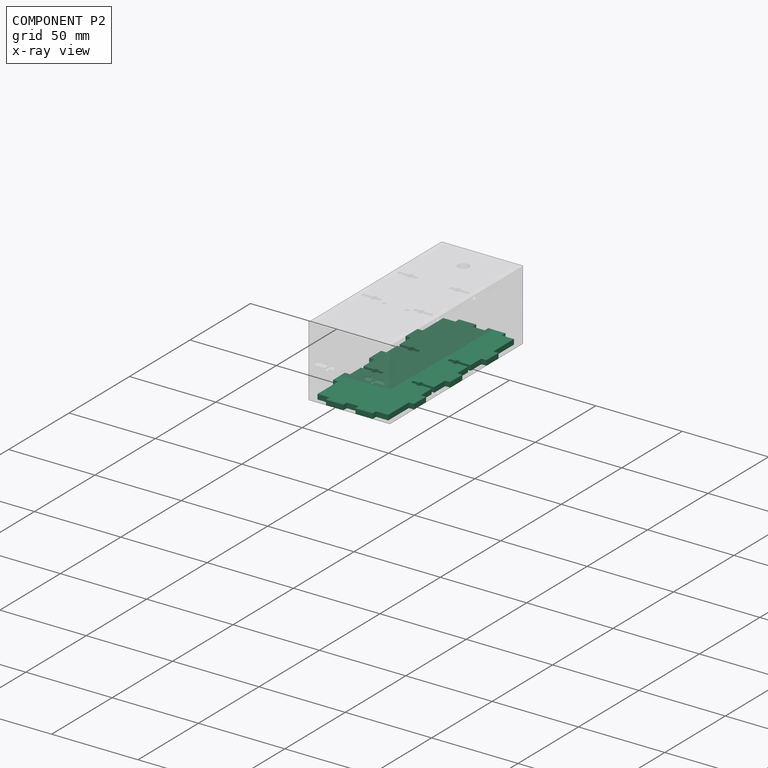
[diagram: component P2 — x-ray view]
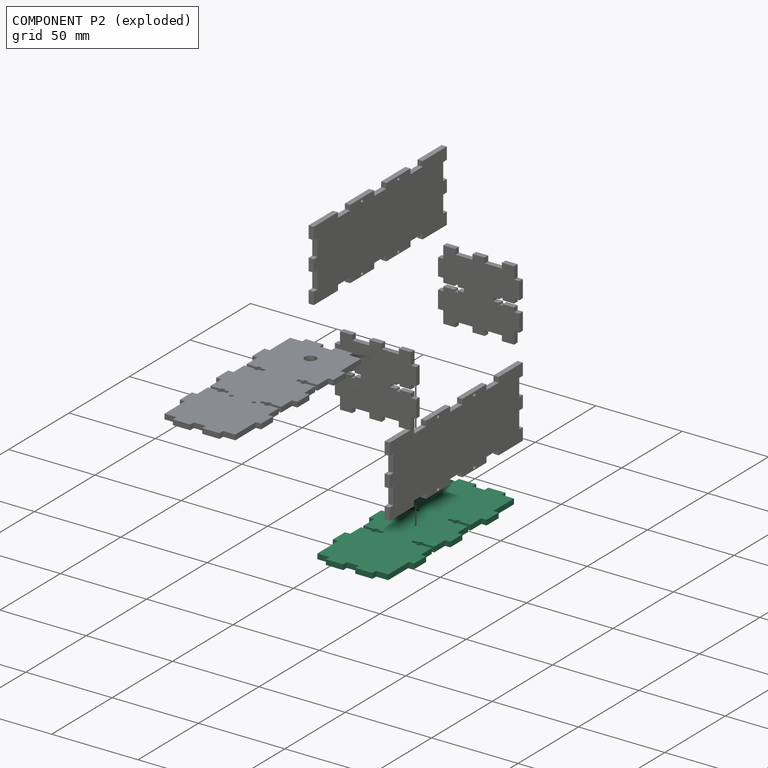
[diagram: component P2 — exploded]
COMPONENT P2 — recipe-attached (CADFS 00243606, mesh-verified: the recipe's output STEP matches this component's geometry to below the mesh-comparison resolution (tessellation chordal tolerance ~0.179 mm)).
Held by: FASTENED mate "Fastened 4" to P1.
Construction recipe (FeatureScript — the CAD program that rebuilds this solid; sketch coordinates are in the units given by the * unit suffixes, e.g. mm):

FeatureScript 1511;
import(path : "onshape/std/geometry.fs", version : "1511.0");
import(path : "onshape/std/common.fs", version : "1511.0");
const mm = millimeter;
const VERTEX = EntityType.VERTEX;
const EDGE = EntityType.EDGE;
const FACE = EntityType.FACE;
const BODY = EntityType.BODY;
function v(x, y){return vector(x, y);}
function OD(order){return orderDisambiguation(order);}
function OSD(set){return originalSetDisambiguation(set);}
function TD(topology){return topologyDisambiguation(topology);}
function TDD(query){return trueDependencyDisambiguation(query);}
function sQuery(a, b, c) {return sketchEntityQuery(a, b, c);}

annotation { "Feature Type Name" : "Feature", "Feature Type Description" : "" }
export const myFeature = defineFeature(function(context is Context, id is Id, definition is map)
    precondition{}
    {
        {
            var Q0;
            Q0=qCreatedBy(makeId("Top.planeOp"),FACE);
            var sketch = newSketch(context, id + "F0", { "sketchPlane" : qUnion([Q0])});
            skLineSegment(sketch, "E0", {"start": v(0, 0) * mm, "end": v(0, 7) * mm});
            skLineSegment(sketch, "E1", {"start": v(0, 7) * mm, "end": v(3, 7) * mm});
            skLineSegment(sketch, "E2", {"start": v(3, 7) * mm, "end": v(3, 17) * mm});
            skLineSegment(sketch, "E3", {"start": v(3, 17) * mm, "end": v(0, 17) * mm});
            skLineSegment(sketch, "E4", {"start": v(0, 17) * mm, "end": v(0, 24) * mm});
            skLineSegment(sketch, "E5", {"start": v(0, 24) * mm, "end": v(3, 24) * mm});
            skLineSegment(sketch, "E6", {"start": v(3, 24) * mm, "end": v(3, 34) * mm});
            skLineSegment(sketch, "E7", {"start": v(3, 34) * mm, "end": v(0, 34) * mm});
            skLineSegment(sketch, "E8", {"start": v(0, 34) * mm, "end": v(0, 41) * mm});
            skLineSegment(sketch, "E9", {"start": v(0, 41) * mm, "end": v(-17, 41) * mm});
            skLineSegment(sketch, "E10", {"start": v(-17, 41) * mm, "end": v(-17, 44) * mm});
            skLineSegment(sketch, "E11", {"start": v(-17, 44) * mm, "end": v(-27, 44) * mm});
            skLineSegment(sketch, "E12", {"start": v(-27, 44) * mm, "end": v(-27, 41) * mm});
            skLineSegment(sketch, "E13", {"start": v(-27, 41) * mm, "end": v(-36, 41) * mm});
            skLineSegment(sketch, "E14", {"start": v(-36, 41) * mm, "end": v(-36, 34.5) * mm});
            skLineSegment(sketch, "E15", {"start": v(-36, 34.5) * mm, "end": v(-35, 34.5) * mm});
            skLineSegment(sketch, "E16", {"start": v(-35, 34.5) * mm, "end": v(-35, 32.5) * mm});
            skLineSegment(sketch, "E17", {"start": v(-35, 32.5) * mm, "end": v(-36, 32.5) * mm});
            skLineSegment(sketch, "E18", {"start": v(-36, 32.5) * mm, "end": v(-36, 29) * mm});
            skLineSegment(sketch, "E19", {"start": v(-36, 29) * mm, "end": v(-38, 29) * mm});
            skLineSegment(sketch, "E20", {"start": v(-38, 29) * mm, "end": v(-38, 32.5) * mm});
            skLineSegment(sketch, "E21", {"start": v(-38, 32.5) * mm, "end": v(-39, 32.5) * mm});
            skLineSegment(sketch, "E22", {"start": v(-39, 32.5) * mm, "end": v(-39, 34.5) * mm});
            skLineSegment(sketch, "E23", {"start": v(-39, 34.5) * mm, "end": v(-38, 34.5) * mm});
            skLineSegment(sketch, "E24", {"start": v(-38, 34.5) * mm, "end": v(-38, 41) * mm});
            skLineSegment(sketch, "E25", {"start": v(-38, 41) * mm, "end": v(-47, 41) * mm});
            skLineSegment(sketch, "E26", {"start": v(-47, 41) * mm, "end": v(-47, 44) * mm});
            skLineSegment(sketch, "E27", {"start": v(-47, 44) * mm, "end": v(-52, 44) * mm});
            skLineSegment(sketch, "E28.MirrorCS", {"start": v(-39, 8.5) * mm, "end": v(-39, 6.5) * mm});
            skLineSegment(sketch, "E29.MirrorCS", {"start": v(-35, 6.5) * mm, "end": v(-35, 8.5) * mm});
            skLineSegment(sketch, "E30.MirrorCS", {"start": v(-38, 8.5) * mm, "end": v(-39, 8.5) * mm});
            skLineSegment(sketch, "E31.MirrorCS", {"start": v(-39, 6.5) * mm, "end": v(-38, 6.5) * mm});
            skLineSegment(sketch, "E32.MirrorCS", {"start": v(-36, 12) * mm, "end": v(-38, 12) * mm});
            skLineSegment(sketch, "E33.MirrorCS", {"start": v(-35, 8.5) * mm, "end": v(-36, 8.5) * mm});
            skLineSegment(sketch, "E34.MirrorCS", {"start": v(-36, 6.5) * mm, "end": v(-35, 6.5) * mm});
            skLineSegment(sketch, "E35.MirrorCS", {"start": v(-36, 8.5) * mm, "end": v(-36, 12) * mm});
            skLineSegment(sketch, "E36.MirrorCS", {"start": v(-38, 12) * mm, "end": v(-38, 8.5) * mm});
            skLineSegment(sketch, "E37.MirrorCS", {"start": v(0, 17) * mm, "end": v(3, 17) * mm});
            skLineSegment(sketch, "E38.MirrorCS", {"start": v(-47, 0) * mm, "end": v(-47, -3) * mm});
            skLineSegment(sketch, "E39.MirrorCS", {"start": v(3, 17) * mm, "end": v(3, 7) * mm});
            skLineSegment(sketch, "E40.MirrorCS", {"start": v(0, 7) * mm, "end": v(0, 0) * mm});
            skLineSegment(sketch, "E41.MirrorCS", {"start": v(3, 7) * mm, "end": v(0, 7) * mm});
            skLineSegment(sketch, "E42.MirrorCS", {"start": v(-38, 0) * mm, "end": v(-47, 0) * mm});
            skLineSegment(sketch, "E43.MirrorCS", {"start": v(-47, -3) * mm, "end": v(-52, -3) * mm});
            skLineSegment(sketch, "E44.MirrorCS", {"start": v(-27, -3) * mm, "end": v(-27, 0) * mm});
            skLineSegment(sketch, "E45.MirrorCS", {"start": v(0, 0) * mm, "end": v(-17, 0) * mm});
            skLineSegment(sketch, "E46.MirrorCS", {"start": v(-38, 6.5) * mm, "end": v(-38, 0) * mm});
            skLineSegment(sketch, "E47.MirrorCS", {"start": v(-27, 0) * mm, "end": v(-36, 0) * mm});
            skLineSegment(sketch, "E48.MirrorCS", {"start": v(-17, 0) * mm, "end": v(-17, -3) * mm});
            skLineSegment(sketch, "E49.MirrorCS", {"start": v(-17, -3) * mm, "end": v(-27, -3) * mm});
            skLineSegment(sketch, "E50.MirrorCS", {"start": v(-36, 0) * mm, "end": v(-36, 6.5) * mm});
            skLineSegment(sketch, "E51.MirrorCS", {"start": v(-107, 7) * mm, "end": v(-104, 7) * mm});
            skLineSegment(sketch, "E52.MirrorCS", {"start": v(-69, 32.5) * mm, "end": v(-68, 32.5) * mm});
            skLineSegment(sketch, "E53.MirrorCS", {"start": v(-104, 7) * mm, "end": v(-107, 7) * mm});
            skLineSegment(sketch, "E54.MirrorCS", {"start": v(-107, 17) * mm, "end": v(-104, 17) * mm});
            skLineSegment(sketch, "E55.MirrorCS", {"start": v(-69, 34.5) * mm, "end": v(-69, 32.5) * mm});
            skLineSegment(sketch, "E56.MirrorCS", {"start": v(-66, 8.5) * mm, "end": v(-65, 8.5) * mm});
            skLineSegment(sketch, "E57.MirrorCS", {"start": v(-104, 17) * mm, "end": v(-107, 17) * mm});
            skLineSegment(sketch, "E58.MirrorCS", {"start": v(-65, 32.5) * mm, "end": v(-65, 34.5) * mm});
            skLineSegment(sketch, "E59.MirrorCS", {"start": v(-69, 6.5) * mm, "end": v(-69, 8.5) * mm});
            skLineSegment(sketch, "E60.MirrorCS", {"start": v(-66, 32.5) * mm, "end": v(-65, 32.5) * mm});
            skLineSegment(sketch, "E61.MirrorCS", {"start": v(-68, 34.5) * mm, "end": v(-69, 34.5) * mm});
            skLineSegment(sketch, "E62.MirrorCS", {"start": v(-68, 6.5) * mm, "end": v(-69, 6.5) * mm});
            skLineSegment(sketch, "E63.MirrorCS", {"start": v(-65, 8.5) * mm, "end": v(-65, 6.5) * mm});
            skLineSegment(sketch, "E64.MirrorCS", {"start": v(-68, 32.5) * mm, "end": v(-68, 29) * mm});
            skLineSegment(sketch, "E65.MirrorCS", {"start": v(-68, 12) * mm, "end": v(-66, 12) * mm});
            skLineSegment(sketch, "E66.MirrorCS", {"start": v(-87, 0) * mm, "end": v(-87, -3) * mm});
            skLineSegment(sketch, "E67.MirrorCS", {"start": v(-69, 8.5) * mm, "end": v(-68, 8.5) * mm});
            skLineSegment(sketch, "E68.MirrorCS", {"start": v(-66, 12) * mm, "end": v(-66, 8.5) * mm});
            skLineSegment(sketch, "E69.MirrorCS", {"start": v(-65, 6.5) * mm, "end": v(-66, 6.5) * mm});
            skLineSegment(sketch, "E70.MirrorCS", {"start": v(-87, 41) * mm, "end": v(-87, 44) * mm});
            skLineSegment(sketch, "E71.MirrorCS", {"start": v(-107, 34) * mm, "end": v(-104, 34) * mm});
            skLineSegment(sketch, "E72.MirrorCS", {"start": v(-57, 0) * mm, "end": v(-57, -3) * mm});
            skLineSegment(sketch, "E73.MirrorCS", {"start": v(-77, 44) * mm, "end": v(-77, 41) * mm});
            skLineSegment(sketch, "E74.MirrorCS", {"start": v(-66, 29) * mm, "end": v(-66, 32.5) * mm});
            skLineSegment(sketch, "E75.MirrorCS", {"start": v(-57, 41) * mm, "end": v(-57, 44) * mm});
            skLineSegment(sketch, "E76.MirrorCS", {"start": v(-65, 34.5) * mm, "end": v(-66, 34.5) * mm});
            skLineSegment(sketch, "E77.MirrorCS", {"start": v(-104, 24) * mm, "end": v(-107, 24) * mm});
            skLineSegment(sketch, "E78.MirrorCS", {"start": v(-68, 29) * mm, "end": v(-66, 29) * mm});
            skLineSegment(sketch, "E79.MirrorCS", {"start": v(-77, -3) * mm, "end": v(-77, 0) * mm});
            skLineSegment(sketch, "E80.MirrorCS", {"start": v(-68, 8.5) * mm, "end": v(-68, 12) * mm});
            skLineSegment(sketch, "E81.MirrorCS", {"start": v(-104, 0) * mm, "end": v(-104, 7) * mm});
            skLineSegment(sketch, "E82.MirrorCS", {"start": v(-107, 7) * mm, "end": v(-107, 17) * mm});
            skLineSegment(sketch, "E83.MirrorCS", {"start": v(-57, 44) * mm, "end": v(-52, 44) * mm});
            skLineSegment(sketch, "E84.MirrorCS", {"start": v(-87, -3) * mm, "end": v(-77, -3) * mm});
            skLineSegment(sketch, "E85.MirrorCS", {"start": v(-66, 6.5) * mm, "end": v(-66, 0) * mm});
            skLineSegment(sketch, "E86.MirrorCS", {"start": v(-66, 41) * mm, "end": v(-57, 41) * mm});
            skLineSegment(sketch, "E87.MirrorCS", {"start": v(-104, 7) * mm, "end": v(-104, 0) * mm});
            skLineSegment(sketch, "E88.MirrorCS", {"start": v(-104, 0) * mm, "end": v(-87, 0) * mm});
            skLineSegment(sketch, "E89.MirrorCS", {"start": v(-66, 34.5) * mm, "end": v(-66, 41) * mm});
            skLineSegment(sketch, "E90.MirrorCS", {"start": v(-107, 17) * mm, "end": v(-107, 7) * mm});
            skLineSegment(sketch, "E91.MirrorCS", {"start": v(-57, -3) * mm, "end": v(-52, -3) * mm});
            skLineSegment(sketch, "E92.MirrorCS", {"start": v(-104, 41) * mm, "end": v(-87, 41) * mm});
            skLineSegment(sketch, "E93.MirrorCS", {"start": v(-87, 44) * mm, "end": v(-77, 44) * mm});
            skLineSegment(sketch, "E94.MirrorCS", {"start": v(-77, 0) * mm, "end": v(-68, 0) * mm});
            skLineSegment(sketch, "E95.MirrorCS", {"start": v(-104, 34) * mm, "end": v(-104, 41) * mm});
            skLineSegment(sketch, "E96.MirrorCS", {"start": v(-107, 24) * mm, "end": v(-107, 34) * mm});
            skLineSegment(sketch, "E97.MirrorCS", {"start": v(-66, 0) * mm, "end": v(-57, 0) * mm});
            skLineSegment(sketch, "E98.MirrorCS", {"start": v(-104, 17) * mm, "end": v(-104, 24) * mm});
            skLineSegment(sketch, "E99.MirrorCS", {"start": v(-68, 41) * mm, "end": v(-68, 34.5) * mm});
            skLineSegment(sketch, "E100.MirrorCS", {"start": v(-77, 41) * mm, "end": v(-68, 41) * mm});
            skLineSegment(sketch, "E101.MirrorCS", {"start": v(-68, 0) * mm, "end": v(-68, 6.5) * mm});
            skSolve(sketch);
        }
        {
            var Q0;
            Q0=makeQuery(id+"F0.imprint","IMPRINT",FACE,{"disambiguationData":[TD([[makeQuery(id+"F0.imprint","IMPRINT",EDGE,{"derivedFrom":sQuery(id+"F0.wireOp",EDGE,"E4")}),1.0]])]});
            extrude(context, id + "F1", {"entities" : qUnion([Q0]), "depth" : 3 * mm});
        }
    });
PROVENANCE & LICENSES
Assembly (occurrences, transforms, mates, per-part STEP geometry): AutoMate dataset, Zenodo record 7776208, CC0.
Construction recipes: CADFS (HuggingFace VladPyatov/CADFS, CC-BY-4.0, layered over the ABC dataset), FeatureScript reconstruction programs keyed by ABC model id.
Join: ABC meta listings map ABC model id -> Onshape documentId; within a shared document, parts are matched by geometric signature (bounding-box dims + volume at 0.1% relative tolerance, exact B-rep face/solid counts).
Verification: 6 of this assembly's 6 components carry a recipe attachment, and every attachment is mesh-verified: the CADFS STEP and the AutoMate member STEP were compared as meshes in their shared local frame (symmetric sampled-point-to-mesh distance); worst across the 6 attachments: below the mesh-comparison resolution (tessellation chordal tolerance ~0.179 mm) on a 120 mm part.
Renders: orthographic iso camera (az 35 / el 25); the floor grid conveys scale (grid pitch printed in each image; no ruler). In the exploded view each component is displaced by its stored offset vector: the offsets alone carry the explosion direction (mate normal/axis signs are not orientation cues and do not encode it), and separation distances are assigned per mate-chain, not proportionally to assembly-order depth.
